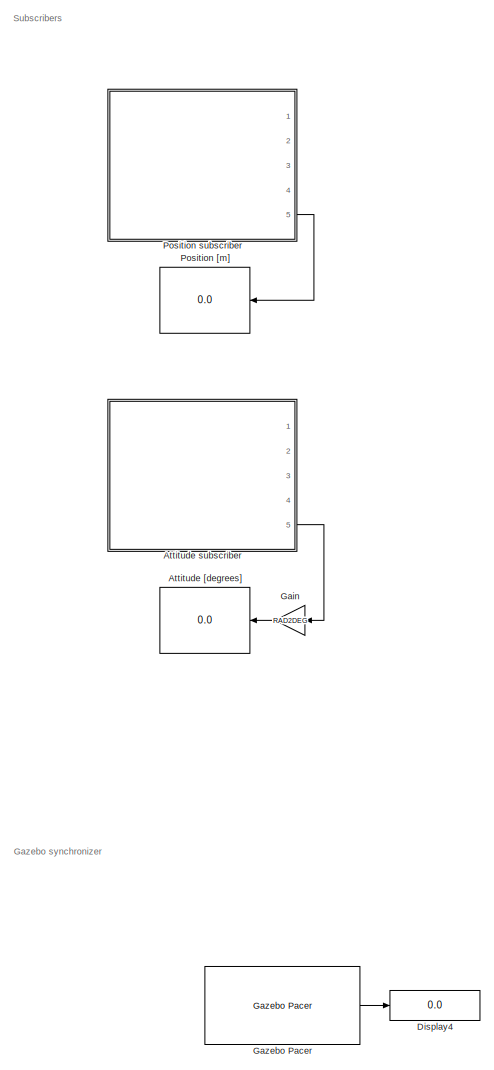
[diagram: root canvas - part 1/2, left side, full height]
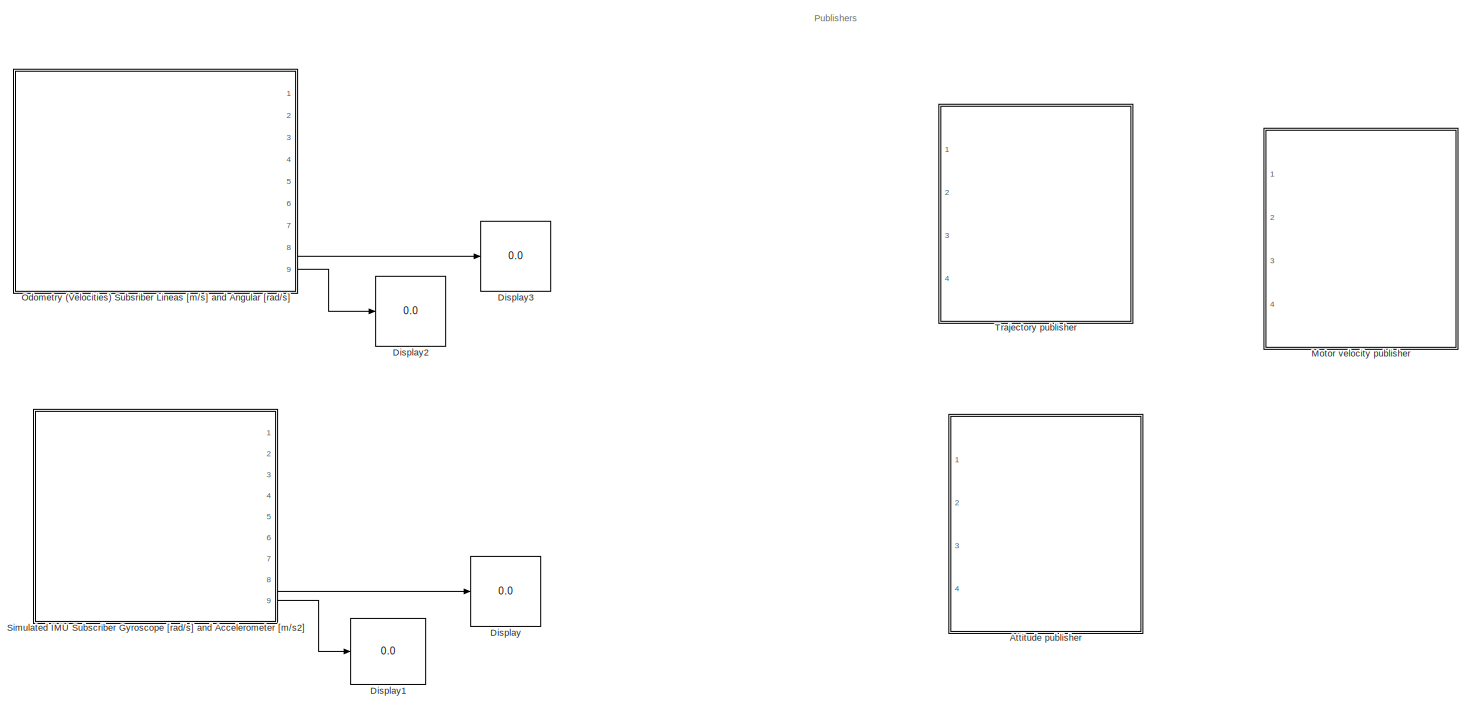
[diagram: root canvas - part 2/2, full width, middle band]
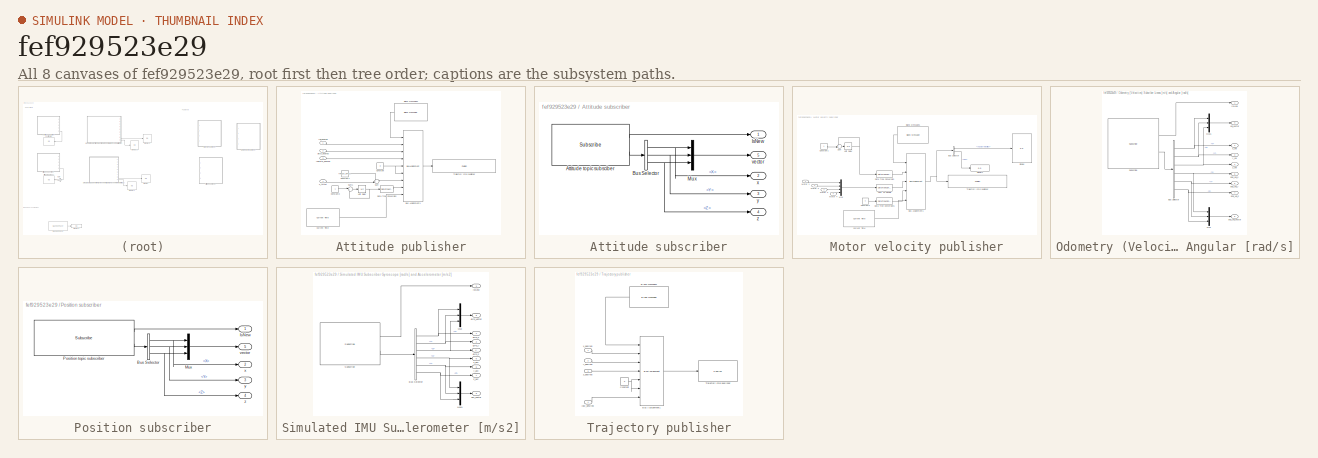
[diagram: thumbnail index - all 8 canvases of the model, root first then tree order]
MODEL slx_fef929523e29
KIND model
CONFIG AbsTol = auto
CONFIG EnableMultiTasking = off
CONFIG FixedStep = FIXED_STEP_SIZE
CONFIG MaxStep = auto
CONFIG MinStep = auto
CONFIG RelTol = 1e-3
CONFIG SampleTimeConstraint = Unconstrained
CONFIG Solver = FixedStepAuto
CONFIG SolverName = FixedStepAuto
CONFIG StartTime = 0.0
CONFIG StopTime = Inf
BLOCK [Display] Attitude [degrees]
  Decimation = 1
  Ports = [1]
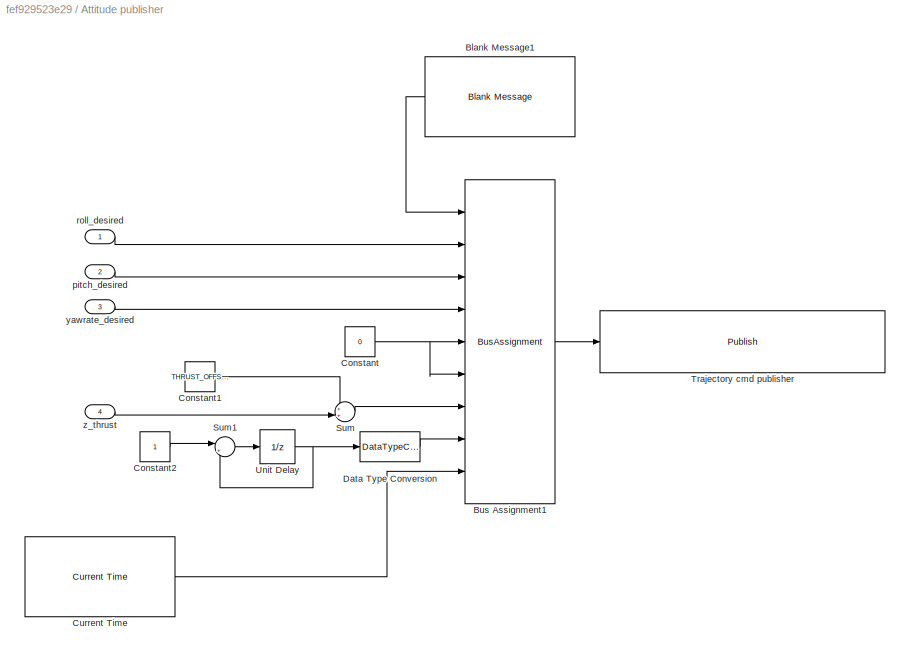
BLOCK [SubSystem] Attitude publisher
  Ports = [4]
  RequestExecContextInheritance = off
BLOCK [Reference] Attitude publisher/Blank Message1  REF=robotlib/Blank Message
  Ports = [0, 1]
  SourceBlock = robotlib/Blank Message
  SourceProductBaseCode = RR
  SourceProductName = ROS Toolbox
  SourceType = ROS Blank Message
BLOCK [BusAssignment] Attitude publisher/Bus Assignment1
  AssignedSignals = Roll,Pitch,YawRate,Thrust.X,Thrust.Y,Thrust.Z,Header.Seq,Header.Stamp
  Ports = [9, 1]
BLOCK [Constant] Attitude publisher/Constant
  Value = 0
BLOCK [Constant] Attitude publisher/Constant1
  Value = THRUST_OFFSET
BLOCK [Constant] Attitude publisher/Constant2
BLOCK [Reference] Attitude publisher/Current Time  REF=robotlib/Current Time
  Ports = [0, 1]
  SourceBlock = robotlib/Current Time
  SourceProductBaseCode = RR
  SourceProductName = ROS Toolbox
  SourceType = ros.slros.internal.block.CurrentTime
BLOCK [DataTypeConversion] Attitude publisher/Data Type Conversion
  OutDataTypeStr = uint32
  RndMeth = Floor
  SaturateOnIntegerOverflow = off
BLOCK [Sum] Attitude publisher/Sum
  IconShape = round
  InputSameDT = off
  Inputs = ++|
  OutDataTypeStr = Inherit: Inherit via internal rule
  Ports = [2, 1]
  SaturateOnIntegerOverflow = off
BLOCK [Sum] Attitude publisher/Sum1
  IconShape = round
  InputSameDT = off
  Inputs = |++
  OutDataTypeStr = Inherit: Inherit via internal rule
  Ports = [2, 1]
  SaturateOnIntegerOverflow = off
BLOCK [Reference] Attitude publisher/Trajectory cmd publisher  REF=robotlib/Publish
  Ports = [1]
  SourceBlock = robotlib/Publish
  SourceProductBaseCode = RR
  SourceProductName = ROS Toolbox
  SourceType = ROS Publish
BLOCK [UnitDelay] Attitude publisher/Unit Delay
  HasFrameUpgradeWarning = on
  SampleTime = FIXED_STEP_SIZE
BLOCK [Inport] Attitude publisher/pitch_desired
  IconDisplay = Port number
  Port = 2
BLOCK [Inport] Attitude publisher/roll_desired
  IconDisplay = Port number
BLOCK [Inport] Attitude publisher/yawrate_desired
  IconDisplay = Port number
  Port = 3
BLOCK [Inport] Attitude publisher/z_thrust
  IconDisplay = Port number
  Port = 4
BLOCK [SubSystem] Attitude subscriber
  Ports = [0, 5]
  RequestExecContextInheritance = off
BLOCK [Reference] Attitude subscriber/Attitude topic subsciber  REF=robotlib/Subscribe
  Ports = [0, 2]
  SourceBlock = robotlib/Subscribe
  SourceProductBaseCode = RR
  SourceProductName = ROS Toolbox
  SourceType = ROS Subscribe
BLOCK [BusSelector] Attitude subscriber/Bus Selector
  OutputAsBus = off
  OutputSignals = X,Y,Z
  Ports = [1, 3]
BLOCK [Outport] Attitude subscriber/IsNew
  IconDisplay = Port number
BLOCK [Mux] Attitude subscriber/Mux
  DisplayOption = bar
  Inputs = 3
  Ports = [3, 1]
BLOCK [Outport] Attitude subscriber/vector
  IconDisplay = Port number
  Port = 5
BLOCK [Outport] Attitude subscriber/x
  IconDisplay = Port number
  Port = 2
BLOCK [Outport] Attitude subscriber/y
  IconDisplay = Port number
  Port = 3
BLOCK [Outport] Attitude subscriber/z
  IconDisplay = Port number
  Port = 4
BLOCK [Display] Display
  Decimation = 1
  Ports = [1]
BLOCK [Display] Display1
  Decimation = 1
  Ports = [1]
BLOCK [Display] Display2
  Decimation = 1
  Ports = [1]
BLOCK [Display] Display3
  Decimation = 1
  Ports = [1]
BLOCK [Display] Display4
  Decimation = 1
  Ports = [1]
BLOCK [Gain] Gain
  Gain = RAD2DEG
  OutDataTypeStr = Inherit: Inherit via internal rule
  ParamDataTypeStr = Inherit: Inherit via internal rule
  SaturateOnIntegerOverflow = off
BLOCK [Reference] Gazebo Pacer  REF=robotgazebolib/Gazebo Pacer
  Ports = [0, 1]
  SourceBlock = robotgazebolib/Gazebo Pacer
  SourceProductBaseCode = RO
  SourceProductName = Robotics System Toolbox
  SourceType = Gazebo Pacer
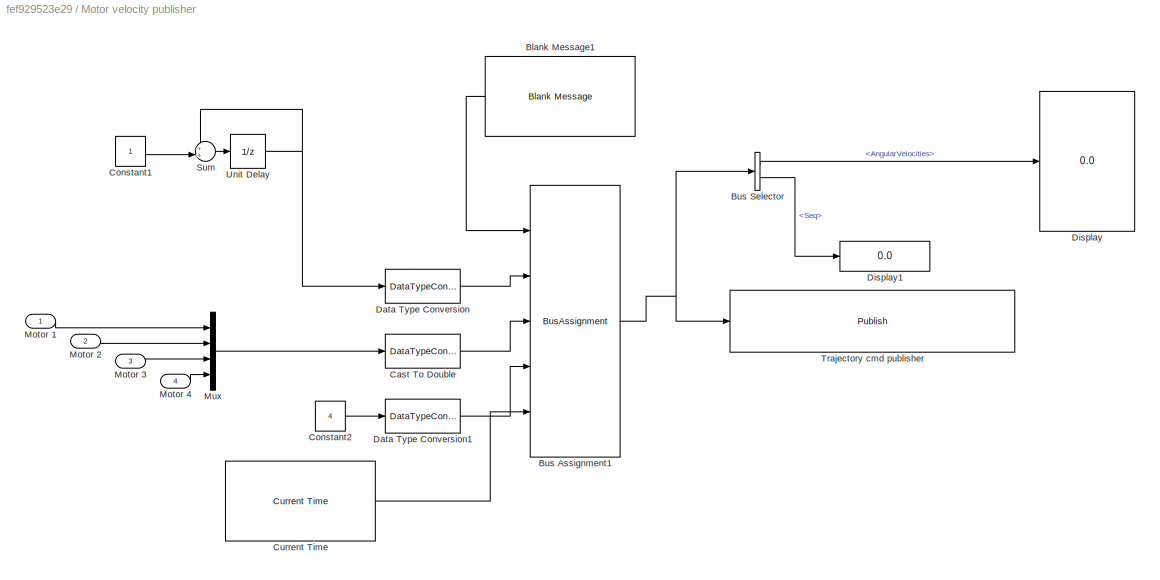
BLOCK [SubSystem] Motor velocity publisher
  Ports = [4]
  RequestExecContextInheritance = off
BLOCK [Reference] Motor velocity publisher/Blank Message1  REF=robotlib/Blank Message
  Ports = [0, 1]
  SourceBlock = robotlib/Blank Message
  SourceProductBaseCode = RR
  SourceProductName = ROS Toolbox
  SourceType = ROS Blank Message
BLOCK [BusAssignment] Motor velocity publisher/Bus Assignment1
  AssignedSignals = Header.Seq,AngularVelocities,AngularVelocities_SL_Info.CurrentLength,Header.Stamp
  Ports = [5, 1]
BLOCK [BusSelector] Motor velocity publisher/Bus Selector
  OutputAsBus = off
  OutputSignals = AngularVelocities,Header.Seq
  Ports = [1, 2]
BLOCK [DataTypeConversion] Motor velocity publisher/Cast To Double
  OutDataTypeStr = double
  RndMeth = Floor
  SaturateOnIntegerOverflow = off
BLOCK [Constant] Motor velocity publisher/Constant1
BLOCK [Constant] Motor velocity publisher/Constant2
  Value = 4
BLOCK [Reference] Motor velocity publisher/Current Time  REF=robotlib/Current Time
  Ports = [0, 1]
  SourceBlock = robotlib/Current Time
  SourceProductBaseCode = RR
  SourceProductName = ROS Toolbox
  SourceType = ros.slros.internal.block.CurrentTime
BLOCK [DataTypeConversion] Motor velocity publisher/Data Type Conversion
  OutDataTypeStr = uint32
  RndMeth = Floor
  SaturateOnIntegerOverflow = off
BLOCK [DataTypeConversion] Motor velocity publisher/Data Type Conversion1
  OutDataTypeStr = uint32
  RndMeth = Floor
  SaturateOnIntegerOverflow = off
BLOCK [Display] Motor velocity publisher/Display
  Decimation = 1
  Ports = [1]
BLOCK [Display] Motor velocity publisher/Display1
  Decimation = 1
  Ports = [1]
BLOCK [Inport] Motor velocity publisher/Motor 1
  IconDisplay = Port number
BLOCK [Inport] Motor velocity publisher/Motor 2
  IconDisplay = Port number
  Port = 2
BLOCK [Inport] Motor velocity publisher/Motor 3
  IconDisplay = Port number
  Port = 3
BLOCK [Inport] Motor velocity publisher/Motor 4
  IconDisplay = Port number
  Port = 4
BLOCK [Mux] Motor velocity publisher/Mux
  DisplayOption = bar
  Ports = [4, 1]
BLOCK [Sum] Motor velocity publisher/Sum
  IconShape = round
  InputSameDT = off
  Inputs = ++|
  OutDataTypeStr = Inherit: Inherit via internal rule
  Ports = [2, 1]
  SaturateOnIntegerOverflow = off
BLOCK [Reference] Motor velocity publisher/Trajectory cmd publisher  REF=robotlib/Publish
  Ports = [1]
  SourceBlock = robotlib/Publish
  SourceProductBaseCode = RR
  SourceProductName = ROS Toolbox
  SourceType = ROS Publish
BLOCK [UnitDelay] Motor velocity publisher/Unit Delay
  HasFrameUpgradeWarning = on
  SampleTime = FIXED_STEP_SIZE
BLOCK [SubSystem] Odometry (Velocities) Subsriber Lineas [m//s] and Angular [rad//s]
  Ports = [0, 9]
  RequestExecContextInheritance = off
BLOCK [BusSelector] Odometry (Velocities) Subsriber Lineas [m//s] and Angular [rad//s]/Bus Selector
  OutputAsBus = off
  OutputSignals = Twist.Twist.Linear.X,Twist.Twist.Linear.Y,Twist.Twist.Linear.Z,Twist.Twist.Angular.X,Twist.Twist.Angular.Y,Twist.Twist.Angular.Z
  Ports = [1, 6]
BLOCK [Outport] Odometry (Velocities) Subsriber Lineas [m//s] and Angular [rad//s]/IsNew
  IconDisplay = Port number
BLOCK [Mux] Odometry (Velocities) Subsriber Lineas [m//s] and Angular [rad//s]/Mux
  DisplayOption = bar
  Inputs = 3
  Ports = [3, 1]
BLOCK [Mux] Odometry (Velocities) Subsriber Lineas [m//s] and Angular [rad//s]/Mux1
  DisplayOption = bar
  Inputs = 3
  Ports = [3, 1]
BLOCK [Reference] Odometry (Velocities) Subsriber Lineas [m//s] and Angular [rad//s]/Subscribe  REF=robotlib/Subscribe
  Ports = [0, 2]
  SourceBlock = robotlib/Subscribe
  SourceProductBaseCode = RR
  SourceProductName = ROS Toolbox
  SourceType = ROS Subscribe
BLOCK [Outport] Odometry (Velocities) Subsriber Lineas [m//s] and Angular [rad//s]/ang_vel_vector
  IconDisplay = Port number
  Port = 8
BLOCK [Outport] Odometry (Velocities) Subsriber Lineas [m//s] and Angular [rad//s]/ang_vel_x
  IconDisplay = Port number
  Port = 5
BLOCK [Outport] Odometry (Velocities) Subsriber Lineas [m//s] and Angular [rad//s]/ang_vel_y
  IconDisplay = Port number
  Port = 6
BLOCK [Outport] Odometry (Velocities) Subsriber Lineas [m//s] and Angular [rad//s]/ang_vel_z
  IconDisplay = Port number
  Port = 7
BLOCK [Outport] Odometry (Velocities) Subsriber Lineas [m//s] and Angular [rad//s]/vel_vector
  IconDisplay = Port number
  Port = 9
BLOCK [Outport] Odometry (Velocities) Subsriber Lineas [m//s] and Angular [rad//s]/x_vel
  IconDisplay = Port number
  Port = 2
BLOCK [Outport] Odometry (Velocities) Subsriber Lineas [m//s] and Angular [rad//s]/y_vel
  IconDisplay = Port number
  Port = 3
BLOCK [Outport] Odometry (Velocities) Subsriber Lineas [m//s] and Angular [rad//s]/z_vel
  IconDisplay = Port number
  Port = 4
BLOCK [Display] Position [m]
  Decimation = 1
  Ports = [1]
BLOCK [SubSystem] Position subscriber
  Ports = [0, 5]
  RequestExecContextInheritance = off
BLOCK [BusSelector] Position subscriber/Bus Selector
  OutputAsBus = off
  OutputSignals = Point.X,Point.Y,Point.Z
  Ports = [1, 3]
BLOCK [Outport] Position subscriber/IsNew
  IconDisplay = Port number
BLOCK [Mux] Position subscriber/Mux
  DisplayOption = bar
  Inputs = 3
  Ports = [3, 1]
BLOCK [Reference] Position subscriber/Position topic subscriber  REF=robotlib/Subscribe
  Ports = [0, 2]
  SourceBlock = robotlib/Subscribe
  SourceProductBaseCode = RR
  SourceProductName = ROS Toolbox
  SourceType = ROS Subscribe
BLOCK [Outport] Position subscriber/vector
  IconDisplay = Port number
  Port = 5
BLOCK [Outport] Position subscriber/x
  IconDisplay = Port number
  Port = 2
BLOCK [Outport] Position subscriber/y
  IconDisplay = Port number
  Port = 3
BLOCK [Outport] Position subscriber/z
  IconDisplay = Port number
  Port = 4
BLOCK [SubSystem] Simulated IMU Subscriber Gyroscope [rad//s] and Accelerometer [m//s2]
  Ports = [0, 9]
  RequestExecContextInheritance = off
BLOCK [BusSelector] Simulated IMU Subscriber Gyroscope [rad//s] and Accelerometer [m//s2]/Bus Selector
  OutputAsBus = off
  OutputSignals = AngularVelocity.X,AngularVelocity.Y,AngularVelocity.Z,LinearAcceleration.X,LinearAcceleration.Y,LinearAcceleration.Z
  Ports = [1, 6]
BLOCK [Outport] Simulated IMU Subscriber Gyroscope [rad//s] and Accelerometer [m//s2]/IsNew
  IconDisplay = Port number
  Port = 3
BLOCK [Mux] Simulated IMU Subscriber Gyroscope [rad//s] and Accelerometer [m//s2]/Mux
  DisplayOption = bar
  Inputs = 3
  Ports = [3, 1]
BLOCK [Mux] Simulated IMU Subscriber Gyroscope [rad//s] and Accelerometer [m//s2]/Mux1
  DisplayOption = bar
  Inputs = 3
  Ports = [3, 1]
BLOCK [Reference] Simulated IMU Subscriber Gyroscope [rad//s] and Accelerometer [m//s2]/Subscribe  REF=robotlib/Subscribe
  Ports = [0, 2]
  SourceBlock = robotlib/Subscribe
  SourceProductBaseCode = RR
  SourceProductName = ROS Toolbox
  SourceType = ROS Subscribe
BLOCK [Outport] Simulated IMU Subscriber Gyroscope [rad//s] and Accelerometer [m//s2]/acc_vector
  IconDisplay = Port number
  Port = 9
BLOCK [Outport] Simulated IMU Subscriber Gyroscope [rad//s] and Accelerometer [m//s2]/gyro_vector
  IconDisplay = Port number
  Port = 8
BLOCK [Outport] Simulated IMU Subscriber Gyroscope [rad//s] and Accelerometer [m//s2]/gyro_x
  IconDisplay = Port number
BLOCK [Outport] Simulated IMU Subscriber Gyroscope [rad//s] and Accelerometer [m//s2]/gyro_y
  IconDisplay = Port number
  Port = 2
BLOCK [Outport] Simulated IMU Subscriber Gyroscope [rad//s] and Accelerometer [m//s2]/gyro_z
  IconDisplay = Port number
  Port = 4
BLOCK [Outport] Simulated IMU Subscriber Gyroscope [rad//s] and Accelerometer [m//s2]/x_acc
  IconDisplay = Port number
  Port = 5
BLOCK [Outport] Simulated IMU Subscriber Gyroscope [rad//s] and Accelerometer [m//s2]/y_acc
  IconDisplay = Port number
  Port = 6
BLOCK [Outport] Simulated IMU Subscriber Gyroscope [rad//s] and Accelerometer [m//s2]/z_acc
  IconDisplay = Port number
  Port = 7
BLOCK [SubSystem] Trajectory publisher
  Ports = [4]
  RequestExecContextInheritance = off
BLOCK [Reference] Trajectory publisher/Blank Message1  REF=robotlib/Blank Message
  Ports = [0, 1]
  SourceBlock = robotlib/Blank Message
  SourceProductBaseCode = RR
  SourceProductName = ROS Toolbox
  SourceType = ROS Blank Message
BLOCK [BusAssignment] Trajectory publisher/Bus Assignment1
  AssignedSignals = Linear.X,Linear.Y,Linear.Z,Angular.X,Angular.Y,Angular.Z
  Ports = [7, 1]
BLOCK [Constant] Trajectory publisher/Constant
  Value = 0
BLOCK [Reference] Trajectory publisher/Trajectory cmd publisher  REF=robotlib/Publish
  Ports = [1]
  SourceBlock = robotlib/Publish
  SourceProductBaseCode = RR
  SourceProductName = ROS Toolbox
  SourceType = ROS Publish
BLOCK [Inport] Trajectory publisher/x_desired
  IconDisplay = Port number
BLOCK [Inport] Trajectory publisher/y_desired
  IconDisplay = Port number
  Port = 2
BLOCK [Inport] Trajectory publisher/yaw_desired
  IconDisplay = Port number
  Port = 4
BLOCK [Inport] Trajectory publisher/z_desired
  IconDisplay = Port number
  Port = 3
ANNOTATION (root): Gazebo synchronizer
ANNOTATION (root): Publishers
ANNOTATION (root): Subscribers
LINE Attitude publisher/Blank Message1:1 -> Attitude publisher/Bus Assignment1:1
LINE Attitude publisher/Bus Assignment1:1 -> Attitude publisher/Trajectory cmd publisher:1
LINE Attitude publisher/Constant1:1 -> Attitude publisher/Sum:1
LINE Attitude publisher/Constant2:1 -> Attitude publisher/Sum1:1
NET Attitude publisher/Constant:1 -> Attitude publisher/Bus Assignment1:5, Attitude publisher/Bus Assignment1:6
LINE Attitude publisher/Current Time:1 -> Attitude publisher/Bus Assignment1:9
LINE Attitude publisher/Data Type Conversion:1 -> Attitude publisher/Bus Assignment1:8
LINE Attitude publisher/Sum1:1 -> Attitude publisher/Unit Delay:1
LINE Attitude publisher/Sum:1 -> Attitude publisher/Bus Assignment1:7
NET Attitude publisher/Unit Delay:1 -> Attitude publisher/Data Type Conversion:1, Attitude publisher/Sum1:2
LINE Attitude publisher/pitch_desired:1 -> Attitude publisher/Bus Assignment1:3
LINE Attitude publisher/roll_desired:1 -> Attitude publisher/Bus Assignment1:2
LINE Attitude publisher/yawrate_desired:1 -> Attitude publisher/Bus Assignment1:4
LINE Attitude publisher/z_thrust:1 -> Attitude publisher/Sum:2
LINE Attitude subscriber/Attitude topic subsciber:1 -> Attitude subscriber/IsNew:1
LINE Attitude subscriber/Attitude topic subsciber:2 -> Attitude subscriber/Bus Selector:1
NET Attitude subscriber/Bus Selector:1 -> Attitude subscriber/Mux:1, Attitude subscriber/x:1
NET Attitude subscriber/Bus Selector:2 -> Attitude subscriber/Mux:2, Attitude subscriber/y:1
NET Attitude subscriber/Bus Selector:3 -> Attitude subscriber/Mux:3, Attitude subscriber/z:1
LINE Attitude subscriber/Mux:1 -> Attitude subscriber/vector:1
LINE Attitude subscriber:5 -> Gain:1
LINE Gain:1 -> Attitude [degrees]:1
LINE Gazebo Pacer:1 -> Display4:1
LINE Motor velocity publisher/Blank Message1:1 -> Motor velocity publisher/Bus Assignment1:1
NET Motor velocity publisher/Bus Assignment1:1 -> Motor velocity publisher/Bus Selector:1, Motor velocity publisher/Trajectory cmd publisher:1
LINE Motor velocity publisher/Bus Selector:1 -> Motor velocity publisher/Display:1
LINE Motor velocity publisher/Bus Selector:2 -> Motor velocity publisher/Display1:1
LINE Motor velocity publisher/Cast To Double:1 -> Motor velocity publisher/Bus Assignment1:3
LINE Motor velocity publisher/Constant1:1 -> Motor velocity publisher/Sum:2
LINE Motor velocity publisher/Constant2:1 -> Motor velocity publisher/Data Type Conversion1:1
LINE Motor velocity publisher/Current Time:1 -> Motor velocity publisher/Bus Assignment1:5
LINE Motor velocity publisher/Data Type Conversion1:1 -> Motor velocity publisher/Bus Assignment1:4
LINE Motor velocity publisher/Data Type Conversion:1 -> Motor velocity publisher/Bus Assignment1:2
LINE Motor velocity publisher/Motor 1:1 -> Motor velocity publisher/Mux:1
LINE Motor velocity publisher/Motor 2:1 -> Motor velocity publisher/Mux:2
LINE Motor velocity publisher/Motor 3:1 -> Motor velocity publisher/Mux:3
LINE Motor velocity publisher/Motor 4:1 -> Motor velocity publisher/Mux:4
LINE Motor velocity publisher/Mux:1 -> Motor velocity publisher/Cast To Double:1
LINE Motor velocity publisher/Sum:1 -> Motor velocity publisher/Unit Delay:1
NET Motor velocity publisher/Unit Delay:1 -> Motor velocity publisher/Data Type Conversion:1, Motor velocity publisher/Sum:1
NET Odometry (Velocities) Subsriber Lineas [m//s] and Angular [rad//s]/Bus Selector:1 -> Odometry (Velocities) Subsriber Lineas [m//s] and Angular [rad//s]/Mux1:1, Odometry (Velocities) Subsriber Lineas [m//s] and Angular [rad//s]/x_vel:1
NET Odometry (Velocities) Subsriber Lineas [m//s] and Angular [rad//s]/Bus Selector:2 -> Odometry (Velocities) Subsriber Lineas [m//s] and Angular [rad//s]/Mux1:2, Odometry (Velocities) Subsriber Lineas [m//s] and Angular [rad//s]/y_vel:1
NET Odometry (Velocities) Subsriber Lineas [m//s] and Angular [rad//s]/Bus Selector:3 -> Odometry (Velocities) Subsriber Lineas [m//s] and Angular [rad//s]/Mux1:3, Odometry (Velocities) Subsriber Lineas [m//s] and Angular [rad//s]/z_vel:1
NET Odometry (Velocities) Subsriber Lineas [m//s] and Angular [rad//s]/Bus Selector:4 -> Odometry (Velocities) Subsriber Lineas [m//s] and Angular [rad//s]/Mux:1, Odometry (Velocities) Subsriber Lineas [m//s] and Angular [rad//s]/ang_vel_x:1
NET Odometry (Velocities) Subsriber Lineas [m//s] and Angular [rad//s]/Bus Selector:5 -> Odometry (Velocities) Subsriber Lineas [m//s] and Angular [rad//s]/Mux:2, Odometry (Velocities) Subsriber Lineas [m//s] and Angular [rad//s]/ang_vel_y:1
NET Odometry (Velocities) Subsriber Lineas [m//s] and Angular [rad//s]/Bus Selector:6 -> Odometry (Velocities) Subsriber Lineas [m//s] and Angular [rad//s]/Mux:3, Odometry (Velocities) Subsriber Lineas [m//s] and Angular [rad//s]/ang_vel_z:1
LINE Odometry (Velocities) Subsriber Lineas [m//s] and Angular [rad//s]/Mux1:1 -> Odometry (Velocities) Subsriber Lineas [m//s] and Angular [rad//s]/vel_vector:1
LINE Odometry (Velocities) Subsriber Lineas [m//s] and Angular [rad//s]/Mux:1 -> Odometry (Velocities) Subsriber Lineas [m//s] and Angular [rad//s]/ang_vel_vector:1
LINE Odometry (Velocities) Subsriber Lineas [m//s] and Angular [rad//s]/Subscribe:1 -> Odometry (Velocities) Subsriber Lineas [m//s] and Angular [rad//s]/IsNew:1
LINE Odometry (Velocities) Subsriber Lineas [m//s] and Angular [rad//s]/Subscribe:2 -> Odometry (Velocities) Subsriber Lineas [m//s] and Angular [rad//s]/Bus Selector:1
LINE Odometry (Velocities) Subsriber Lineas [m//s] and Angular [rad//s]:8 -> Display3:1
LINE Odometry (Velocities) Subsriber Lineas [m//s] and Angular [rad//s]:9 -> Display2:1
NET Position subscriber/Bus Selector:1 -> Position subscriber/Mux:1, Position subscriber/x:1
NET Position subscriber/Bus Selector:2 -> Position subscriber/Mux:2, Position subscriber/y:1
NET Position subscriber/Bus Selector:3 -> Position subscriber/Mux:3, Position subscriber/z:1
LINE Position subscriber/Mux:1 -> Position subscriber/vector:1
LINE Position subscriber/Position topic subscriber:1 -> Position subscriber/IsNew:1
LINE Position subscriber/Position topic subscriber:2 -> Position subscriber/Bus Selector:1
LINE Position subscriber:5 -> Position [m]:1
NET Simulated IMU Subscriber Gyroscope [rad//s] and Accelerometer [m//s2]/Bus Selector:1 -> Simulated IMU Subscriber Gyroscope [rad//s] and Accelerometer [m//s2]/Mux:1, Simulated IMU Subscriber Gyroscope [rad//s] and Accelerometer [m//s2]/gyro_x:1
NET Simulated IMU Subscriber Gyroscope [rad//s] and Accelerometer [m//s2]/Bus Selector:2 -> Simulated IMU Subscriber Gyroscope [rad//s] and Accelerometer [m//s2]/Mux:2, Simulated IMU Subscriber Gyroscope [rad//s] and Accelerometer [m//s2]/gyro_y:1
NET Simulated IMU Subscriber Gyroscope [rad//s] and Accelerometer [m//s2]/Bus Selector:3 -> Simulated IMU Subscriber Gyroscope [rad//s] and Accelerometer [m//s2]/Mux:3, Simulated IMU Subscriber Gyroscope [rad//s] and Accelerometer [m//s2]/gyro_z:1
NET Simulated IMU Subscriber Gyroscope [rad//s] and Accelerometer [m//s2]/Bus Selector:4 -> Simulated IMU Subscriber Gyroscope [rad//s] and Accelerometer [m//s2]/Mux1:1, Simulated IMU Subscriber Gyroscope [rad//s] and Accelerometer [m//s2]/x_acc:1
NET Simulated IMU Subscriber Gyroscope [rad//s] and Accelerometer [m//s2]/Bus Selector:5 -> Simulated IMU Subscriber Gyroscope [rad//s] and Accelerometer [m//s2]/Mux1:2, Simulated IMU Subscriber Gyroscope [rad//s] and Accelerometer [m//s2]/y_acc:1
NET Simulated IMU Subscriber Gyroscope [rad//s] and Accelerometer [m//s2]/Bus Selector:6 -> Simulated IMU Subscriber Gyroscope [rad//s] and Accelerometer [m//s2]/Mux1:3, Simulated IMU Subscriber Gyroscope [rad//s] and Accelerometer [m//s2]/z_acc:1
LINE Simulated IMU Subscriber Gyroscope [rad//s] and Accelerometer [m//s2]/Mux1:1 -> Simulated IMU Subscriber Gyroscope [rad//s] and Accelerometer [m//s2]/acc_vector:1
LINE Simulated IMU Subscriber Gyroscope [rad//s] and Accelerometer [m//s2]/Mux:1 -> Simulated IMU Subscriber Gyroscope [rad//s] and Accelerometer [m//s2]/gyro_vector:1
LINE Simulated IMU Subscriber Gyroscope [rad//s] and Accelerometer [m//s2]/Subscribe:1 -> Simulated IMU Subscriber Gyroscope [rad//s] and Accelerometer [m//s2]/IsNew:1
LINE Simulated IMU Subscriber Gyroscope [rad//s] and Accelerometer [m//s2]/Subscribe:2 -> Simulated IMU Subscriber Gyroscope [rad//s] and Accelerometer [m//s2]/Bus Selector:1
LINE Simulated IMU Subscriber Gyroscope [rad//s] and Accelerometer [m//s2]:8 -> Display:1
LINE Simulated IMU Subscriber Gyroscope [rad//s] and Accelerometer [m//s2]:9 -> Display1:1
LINE Trajectory publisher/Blank Message1:1 -> Trajectory publisher/Bus Assignment1:1
LINE Trajectory publisher/Bus Assignment1:1 -> Trajectory publisher/Trajectory cmd publisher:1
NET Trajectory publisher/Constant:1 -> Trajectory publisher/Bus Assignment1:5, Trajectory publisher/Bus Assignment1:6
LINE Trajectory publisher/x_desired:1 -> Trajectory publisher/Bus Assignment1:2
LINE Trajectory publisher/y_desired:1 -> Trajectory publisher/Bus Assignment1:3
LINE Trajectory publisher/yaw_desired:1 -> Trajectory publisher/Bus Assignment1:7
LINE Trajectory publisher/z_desired:1 -> Trajectory publisher/Bus Assignment1:4
note: NET lines group one-source signal fan-out (src -> all destinations, sorted); 1:1 wires keep LINE
